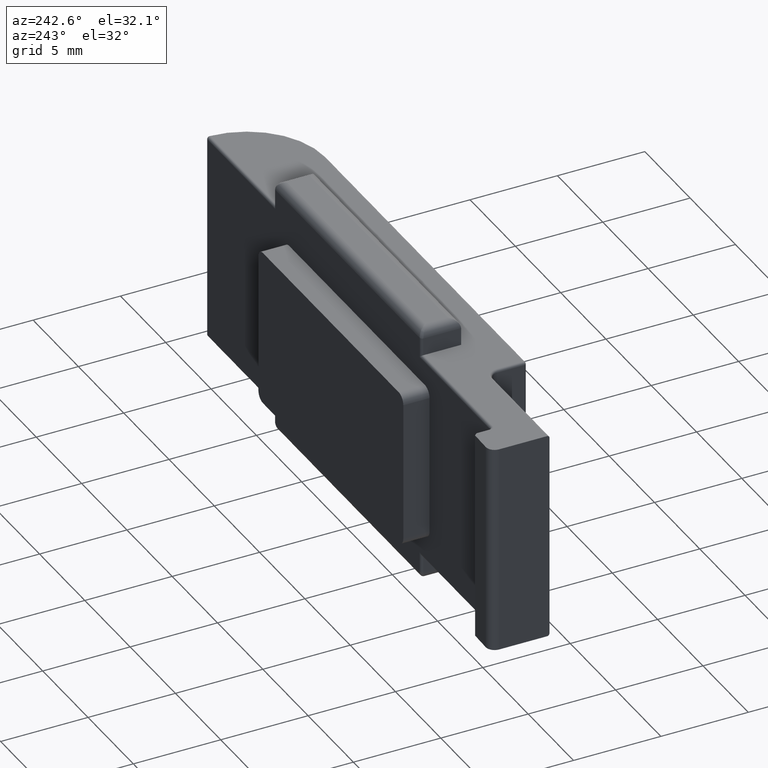
[diagram: clean part render]
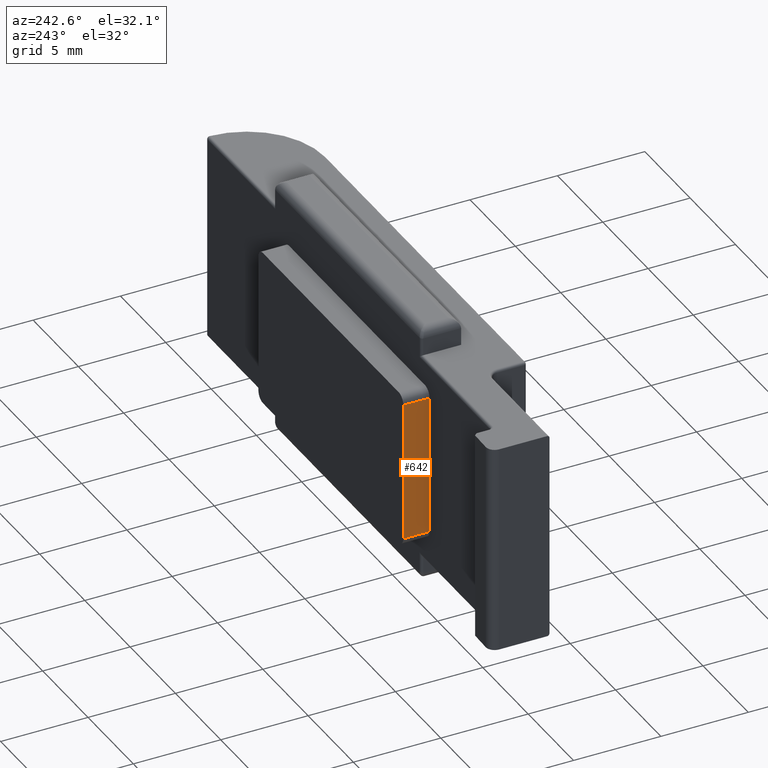
[diagram: same view with one face highlighted and labeled with its STEP entity id]
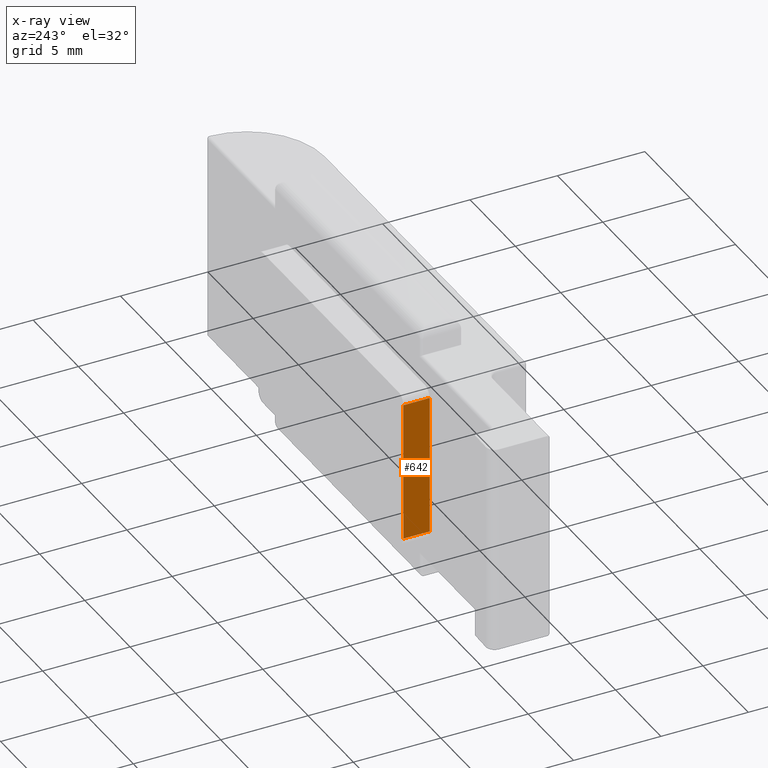
[diagram: x-ray of the same camera — body ghosted, the highlighted face saturated]
A machine part, auxiliary view. The second image highlights one B-rep face of the part: STEP entity #642.
The next image is the same camera in x-ray: the body ghosted, the highlighted face saturated — about 0% of this face is hidden behind the body in this view.
In plain terms, the highlighted planar face has unit normal (1, -0, -0).
Its self-contained STEP definition (entity closure, byte-faithful):
#11 = DIRECTION ( 'NONE',  ( -1.445602896647338917E-16, -6.162975822039132834E-33, -1.000000000000000000 ) ) ;
#16 = ORIENTED_EDGE ( 'NONE', *, *, #1722, .T. ) ;
#48 = LINE ( 'NONE', #1227, #1483 ) ;
#91 = ORIENTED_EDGE ( 'NONE', *, *, #1337, .T. ) ;
#94 = CARTESIAN_POINT ( 'NONE',  ( 2.047413023856827774, -0.6000000000000033085, 0.000000000000000000 ) ) ;
#100 = LINE ( 'NONE', #94, #815 ) ;
#191 = CARTESIAN_POINT ( 'NONE',  ( 2.047413023856830883, 0.8999999999999980238, 0.000000000000000000 ) ) ;
#267 = VECTOR ( 'NONE', #1328, 1000.000000000000000 ) ;
#280 = VECTOR ( 'NONE', #551, 1000.000000000000000 ) ;
#362 = CARTESIAN_POINT ( 'NONE',  ( 2.047413023856830883, 0.8999999999999980238, 0.000000000000000000 ) ) ;
#542 = PLANE ( 'NONE',  #1527 ) ;
#547 = ORIENTED_EDGE ( 'NONE', *, *, #2181, .T. ) ;
#548 = VERTEX_POINT ( 'NONE', #1863 ) ;
#551 = DIRECTION ( 'NONE',  ( 1.445602896647338670E-16, 6.162975822039132834E-33, 1.000000000000000000 ) ) ;
#638 = VERTEX_POINT ( 'NONE', #1392 ) ;
#642 = ADVANCED_FACE ( 'NONE', ( #1092 ), #542, .F. ) ;
#674 = EDGE_CURVE ( 'NONE', #548, #638, #1981, .T. ) ;
#815 = VECTOR ( 'NONE', #2125, 1000.000000000000000 ) ;
#853 = DIRECTION ( 'NONE',  ( 1.000000000000000000, -3.446287897283857497E-18, -1.445602896647338917E-16 ) ) ;
#965 = CARTESIAN_POINT ( 'NONE',  ( 2.047413023856830883, 0.8999999999999980238, 2.000000000000001776 ) ) ;
#1092 = FACE_OUTER_BOUND ( 'NONE', #2039, .T. ) ;
#1227 = CARTESIAN_POINT ( 'NONE',  ( 2.047413023856806902, 0.8999999999999980238, 10.00000000000000888 ) ) ;
#1321 = LINE ( 'NONE', #965, #267 ) ;
#1328 = DIRECTION ( 'NONE',  ( -3.446287897283861734E-18, -1.000000000000000000, 0.000000000000000000 ) ) ;
#1337 = EDGE_CURVE ( 'NONE', #1582, #2197, #100, .T. ) ;
#1342 = CARTESIAN_POINT ( 'NONE',  ( 2.047413023856827774, -0.6000000000000033085, 2.000000000000001776 ) ) ;
#1366 = ORIENTED_EDGE ( 'NONE', *, *, #674, .F. ) ;
#1392 = CARTESIAN_POINT ( 'NONE',  ( 2.047413023856806902, 0.8999999999999980238, 10.00000000000000888 ) ) ;
#1483 = VECTOR ( 'NONE', #2079, 1000.000000000000000 ) ;
#1527 = AXIS2_PLACEMENT_3D ( 'NONE', #191, #853, #11 ) ;
#1582 = VERTEX_POINT ( 'NONE', #1342 ) ;
#1710 = CARTESIAN_POINT ( 'NONE',  ( 2.047413023856803349, -0.6000000000000033085, 10.00000000000000888 ) ) ;
#1722 = EDGE_CURVE ( 'NONE', #2197, #638, #48, .T. ) ;
#1863 = CARTESIAN_POINT ( 'NONE',  ( 2.047413023856830883, 0.8999999999999980238, 2.000000000000001776 ) ) ;
#1981 = LINE ( 'NONE', #362, #280 ) ;
#2039 = EDGE_LOOP ( 'NONE', ( #91, #16, #1366, #547 ) ) ;
#2079 = DIRECTION ( 'NONE',  ( 3.446287897283861734E-18, 1.000000000000000000, -0.000000000000000000 ) ) ;
#2125 = DIRECTION ( 'NONE',  ( 1.445602896647338670E-16, 6.162975822039132834E-33, 1.000000000000000000 ) ) ;
#2181 = EDGE_CURVE ( 'NONE', #548, #1582, #1321, .T. ) ;
#2197 = VERTEX_POINT ( 'NONE', #1710 ) ;